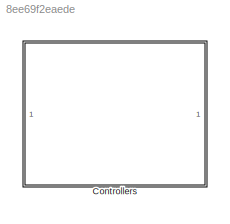
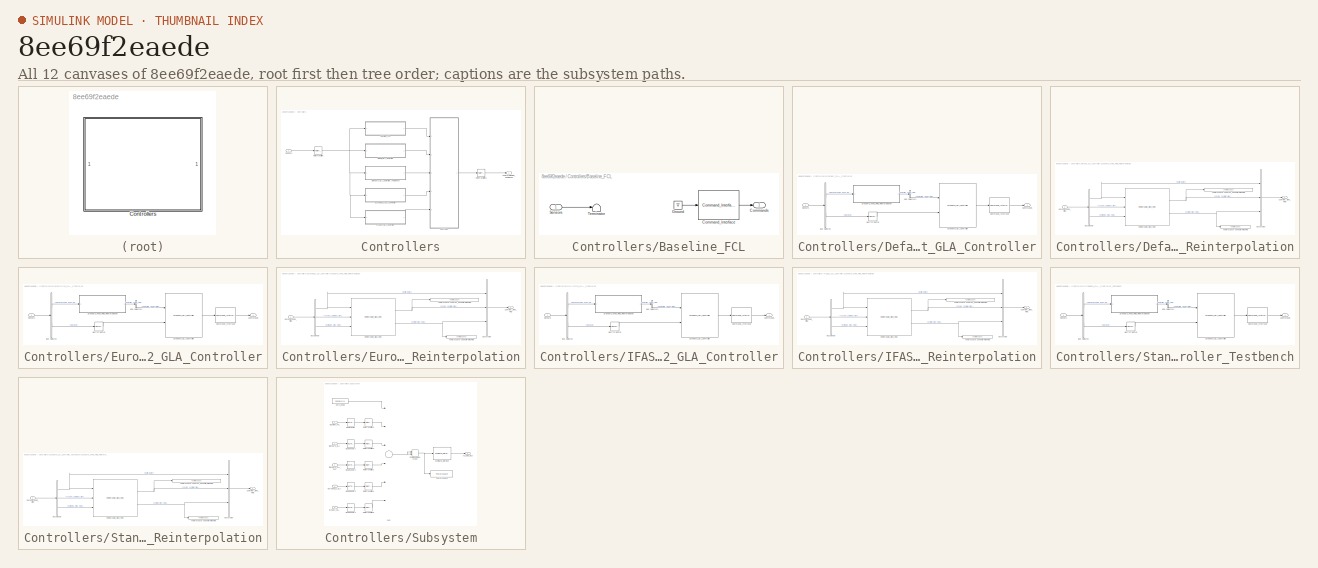
[diagram: thumbnail index - all 12 canvases of the model, root first then tree order]
MODEL slx_8ee69f2eaede
KIND library
CONFIG AbsTol = auto
CONFIG EnableMultiTasking = off
CONFIG FixedStep = auto
CONFIG MaxStep = auto
CONFIG MinStep = auto
CONFIG RelTol = 1e-3
CONFIG SampleTimeConstraint = Unconstrained
CONFIG Solver = VariableStepAuto
CONFIG SolverName = VariableStepAuto
CONFIG StartTime = 0.0
CONFIG StopTime = 10.0
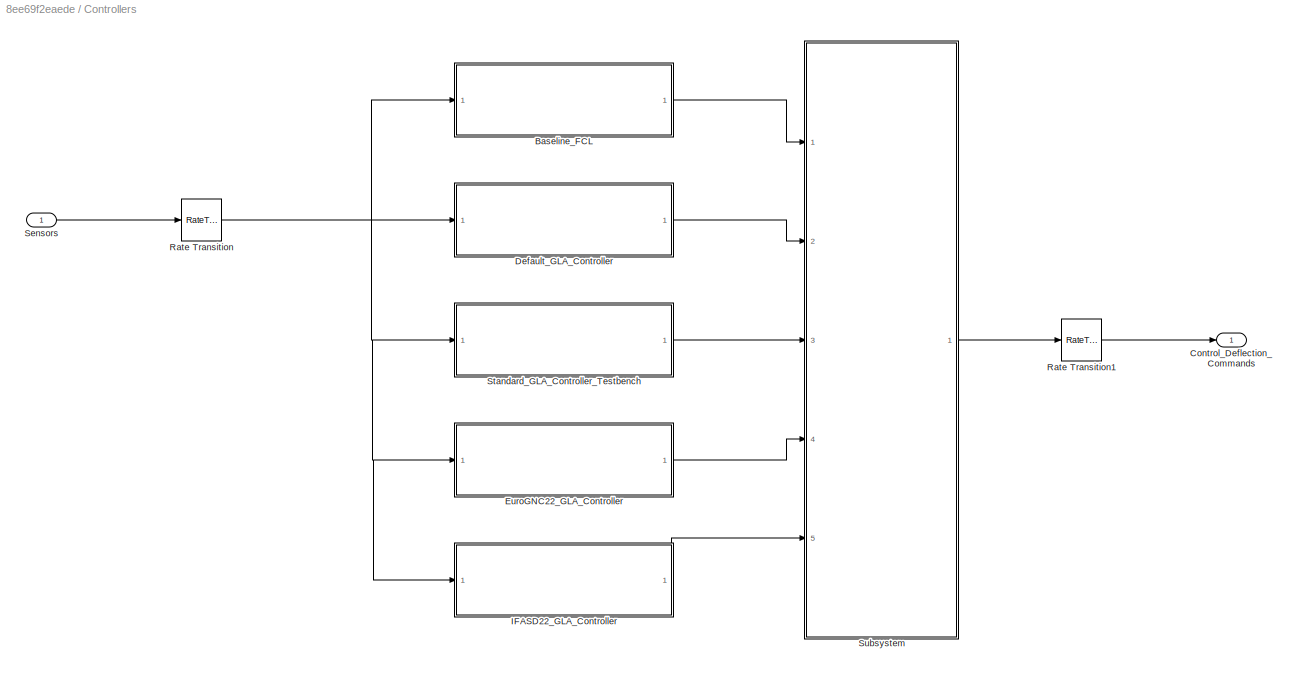
BLOCK [SubSystem] Controllers
  Ports = [1, 1]
  RequestExecContextInheritance = off
  Variant = off
BLOCK [SubSystem] Controllers/Baseline_FCL
  Commented = on
  Ports = [1, 1]
  RequestExecContextInheritance = off
  Variant = off
BLOCK [Reference] Controllers/Baseline_FCL/Command_Interface  REF=lib_Sim_CRM/Command_Interface
  Ports = [1, 1]
  SourceBlock = lib_Sim_CRM/Command_Interface
  SourceType = SubSystem
BLOCK [Outport] Controllers/Baseline_FCL/Commands
  IconDisplay = Port number
BLOCK [Ground] Controllers/Baseline_FCL/Ground
BLOCK [Inport] Controllers/Baseline_FCL/Sensors
  IconDisplay = Port number
BLOCK [Terminator] Controllers/Baseline_FCL/Terminator
BLOCK [Outport] Controllers/Control_Deflection_Commands
  IconDisplay = Port number
BLOCK [SubSystem] Controllers/Default_GLA_Controller
  Ports = [1, 1]
  RequestExecContextInheritance = off
  Variant = off
BLOCK [BusSelector] Controllers/Default_GLA_Controller/Bus Selector
  OutputSignals = Reconstructed_Wind_Field,Classical
  Ports = [1, 2]
BLOCK [BusSelector] Controllers/Default_GLA_Controller/Bus Selector1
  OutputSignals = Controller_Wind_Field [m/s]
  Ports = [1, 1]
BLOCK [BusToVector] Controllers/Default_GLA_Controller/Bus to Vector
BLOCK [Reference] Controllers/Default_GLA_Controller/Command_Interface  REF=lib_Sim_CRM/Command_Interface
  Ports = [1, 1]
  SourceBlock = lib_Sim_CRM/Command_Interface
  SourceType = SubSystem
BLOCK [Outport] Controllers/Default_GLA_Controller/Commands
  IconDisplay = Port number
BLOCK [Inport] Controllers/Default_GLA_Controller/Sensors
  IconDisplay = Port number
BLOCK [Reference] Controllers/Default_GLA_Controller/Standard_GLA_Controller  REF=lib_Sim_CRM/Standard_GLA_Controller
  Ports = [2, 1]
  SourceBlock = lib_Sim_CRM/Standard_GLA_Controller
  SourceType = Simple Gust Load Alleviation Controller Block
BLOCK [SubSystem] Controllers/Default_GLA_Controller/Standard_Wind_Field_Reinterpolation
  Ports = [1, 1]
  RequestExecContextInheritance = off
  Variant = off
BLOCK [BusCreator] Controllers/Default_GLA_Controller/Standard_Wind_Field_Reinterpolation/Bus Creator
  DisplayOption = bar
  InheritFromInputs = on
  Inputs = 3
  Ports = [3, 1]
BLOCK [BusSelector] Controllers/Default_GLA_Controller/Standard_Wind_Field_Reinterpolation/Bus Selector
  OutputSignals = Inertial_Motion,xCoords_Estimated_Wind_Field_Nodes [m],Estimated_Wind_Field [m/s]
  Ports = [1, 3]
BLOCK [Outport] Controllers/Default_GLA_Controller/Standard_Wind_Field_Reinterpolation/Controller_Wind_Field
  IconDisplay = Port number
BLOCK [Inport] Controllers/Default_GLA_Controller/Standard_Wind_Field_Reinterpolation/Reconstructed_Wind
  IconDisplay = Port number
BLOCK [Reference] Controllers/Default_GLA_Controller/Standard_Wind_Field_Reinterpolation/Reinterpolate_Wind_Field  REF=Reinterpolation/Reinterpolate_Wind_Field
  Ports = [3, 2]
  SourceBlock = Reinterpolation/Reinterpolate_Wind_Field
  SourceType = Wind Field Reinterpolation
BLOCK [ToWorkspace] Controllers/Default_GLA_Controller/Standard_Wind_Field_Reinterpolation/To Workspace - ControllerWindField
  Decimation = SimConfig.Logging.DecimationFactor
  MaxDataPoints = inf
  Ports = [1]
  SampleTime = -1
  Save2DSignal = 3-D array (concatenate along third dimension)
  SaveFormat = Structure With Time
  VariableName = Controller_Wind_Field
BLOCK [ToWorkspace] Controllers/Default_GLA_Controller/Standard_Wind_Field_Reinterpolation/To Workspace - xCoords_ControllerWindField
  Decimation = SimConfig.Logging.DecimationFactor
  MaxDataPoints = inf
  Ports = [1]
  SampleTime = -1
  Save2DSignal = 3-D array (concatenate along third dimension)
  SaveFormat = Structure With Time
  VariableName = xCoords_Controller_Wind_Field_Nodes
BLOCK [SubSystem] Controllers/EuroGNC22_GLA_Controller
  Commented = on
  Ports = [1, 1]
  RequestExecContextInheritance = off
  Variant = off
BLOCK [BusSelector] Controllers/EuroGNC22_GLA_Controller/Bus Selector
  OutputSignals = Reconstructed_Wind_Field,Classical
  Ports = [1, 2]
BLOCK [BusSelector] Controllers/EuroGNC22_GLA_Controller/Bus Selector1
  OutputSignals = Controller_Wind_Field [m/s]
  Ports = [1, 1]
BLOCK [BusToVector] Controllers/EuroGNC22_GLA_Controller/Bus to Vector
BLOCK [Reference] Controllers/EuroGNC22_GLA_Controller/Command_Interface  REF=lib_Sim_CRM/Command_Interface
  Ports = [1, 1]
  SourceBlock = lib_Sim_CRM/Command_Interface
  SourceType = SubSystem
BLOCK [Outport] Controllers/EuroGNC22_GLA_Controller/Commands
  IconDisplay = Port number
BLOCK [Inport] Controllers/EuroGNC22_GLA_Controller/Sensors
  IconDisplay = Port number
BLOCK [Reference] Controllers/EuroGNC22_GLA_Controller/Standard_GLA_Controller  REF=lib_Sim_CRM/Standard_GLA_Controller
  Ports = [2, 1]
  SourceBlock = lib_Sim_CRM/Standard_GLA_Controller
  SourceType = Simple Gust Load Alleviation Controller Block
BLOCK [SubSystem] Controllers/EuroGNC22_GLA_Controller/Standard_Wind_Field_Reinterpolation
  Ports = [1, 1]
  RequestExecContextInheritance = off
  Variant = off
BLOCK [BusCreator] Controllers/EuroGNC22_GLA_Controller/Standard_Wind_Field_Reinterpolation/Bus Creator
  DisplayOption = bar
  InheritFromInputs = on
  Inputs = 3
  Ports = [3, 1]
BLOCK [BusSelector] Controllers/EuroGNC22_GLA_Controller/Standard_Wind_Field_Reinterpolation/Bus Selector
  OutputSignals = Inertial_Motion,xCoords_Estimated_Wind_Field_Nodes [m],Estimated_Wind_Field [m/s]
  Ports = [1, 3]
BLOCK [Outport] Controllers/EuroGNC22_GLA_Controller/Standard_Wind_Field_Reinterpolation/Controller_Wind_Field
  IconDisplay = Port number
BLOCK [Inport] Controllers/EuroGNC22_GLA_Controller/Standard_Wind_Field_Reinterpolation/Reconstructed_Wind
  IconDisplay = Port number
BLOCK [Reference] Controllers/EuroGNC22_GLA_Controller/Standard_Wind_Field_Reinterpolation/Reinterpolate_Wind_Field  REF=Reinterpolation/Reinterpolate_Wind_Field
  Ports = [3, 2]
  SourceBlock = Reinterpolation/Reinterpolate_Wind_Field
  SourceType = Wind Field Reinterpolation
BLOCK [ToWorkspace] Controllers/EuroGNC22_GLA_Controller/Standard_Wind_Field_Reinterpolation/To Workspace - ControllerWindField
  Decimation = SimConfig.Logging.DecimationFactor
  MaxDataPoints = inf
  Ports = [1]
  SampleTime = -1
  Save2DSignal = 3-D array (concatenate along third dimension)
  SaveFormat = Structure With Time
  VariableName = Controller_Wind_Field
BLOCK [ToWorkspace] Controllers/EuroGNC22_GLA_Controller/Standard_Wind_Field_Reinterpolation/To Workspace - xCoords_ControllerWindField
  Decimation = SimConfig.Logging.DecimationFactor
  MaxDataPoints = inf
  Ports = [1]
  SampleTime = -1
  Save2DSignal = 3-D array (concatenate along third dimension)
  SaveFormat = Structure With Time
  VariableName = xCoords_Controller_Wind_Field_Nodes
BLOCK [SubSystem] Controllers/IFASD22_GLA_Controller
  Commented = on
  Ports = [1, 1]
  RequestExecContextInheritance = off
  Variant = off
BLOCK [BusSelector] Controllers/IFASD22_GLA_Controller/Bus Selector
  OutputSignals = Reconstructed_Wind_Field,Classical
  Ports = [1, 2]
BLOCK [BusSelector] Controllers/IFASD22_GLA_Controller/Bus Selector1
  OutputSignals = Controller_Wind_Field [m/s]
  Ports = [1, 1]
BLOCK [BusToVector] Controllers/IFASD22_GLA_Controller/Bus to Vector
BLOCK [Reference] Controllers/IFASD22_GLA_Controller/Command_Interface  REF=lib_Sim_CRM/Command_Interface
  Ports = [1, 1]
  SourceBlock = lib_Sim_CRM/Command_Interface
  SourceType = SubSystem
BLOCK [Outport] Controllers/IFASD22_GLA_Controller/Commands
  IconDisplay = Port number
BLOCK [Inport] Controllers/IFASD22_GLA_Controller/Sensors
  IconDisplay = Port number
BLOCK [Reference] Controllers/IFASD22_GLA_Controller/Standard_GLA_Controller  REF=lib_Sim_CRM/Standard_GLA_Controller
  Ports = [2, 1]
  SourceBlock = lib_Sim_CRM/Standard_GLA_Controller
  SourceType = Simple Gust Load Alleviation Controller Block
BLOCK [SubSystem] Controllers/IFASD22_GLA_Controller/Standard_Wind_Field_Reinterpolation
  Ports = [1, 1]
  RequestExecContextInheritance = off
  Variant = off
BLOCK [BusCreator] Controllers/IFASD22_GLA_Controller/Standard_Wind_Field_Reinterpolation/Bus Creator
  DisplayOption = bar
  InheritFromInputs = on
  Inputs = 3
  Ports = [3, 1]
BLOCK [BusSelector] Controllers/IFASD22_GLA_Controller/Standard_Wind_Field_Reinterpolation/Bus Selector
  OutputSignals = Inertial_Motion,xCoords_Estimated_Wind_Field_Nodes [m],Estimated_Wind_Field [m/s]
  Ports = [1, 3]
BLOCK [Outport] Controllers/IFASD22_GLA_Controller/Standard_Wind_Field_Reinterpolation/Controller_Wind_Field
  IconDisplay = Port number
BLOCK [Inport] Controllers/IFASD22_GLA_Controller/Standard_Wind_Field_Reinterpolation/Reconstructed_Wind
  IconDisplay = Port number
BLOCK [Reference] Controllers/IFASD22_GLA_Controller/Standard_Wind_Field_Reinterpolation/Reinterpolate_Wind_Field  REF=Reinterpolation/Reinterpolate_Wind_Field
  Ports = [3, 2]
  SourceBlock = Reinterpolation/Reinterpolate_Wind_Field
  SourceType = Wind Field Reinterpolation
BLOCK [ToWorkspace] Controllers/IFASD22_GLA_Controller/Standard_Wind_Field_Reinterpolation/To Workspace - ControllerWindField
  Decimation = SimConfig.Logging.DecimationFactor
  MaxDataPoints = inf
  Ports = [1]
  SampleTime = -1
  Save2DSignal = 3-D array (concatenate along third dimension)
  SaveFormat = Structure With Time
  VariableName = Controller_Wind_Field
BLOCK [ToWorkspace] Controllers/IFASD22_GLA_Controller/Standard_Wind_Field_Reinterpolation/To Workspace - xCoords_ControllerWindField
  Decimation = SimConfig.Logging.DecimationFactor
  MaxDataPoints = inf
  Ports = [1]
  SampleTime = -1
  Save2DSignal = 3-D array (concatenate along third dimension)
  SaveFormat = Structure With Time
  VariableName = xCoords_Controller_Wind_Field_Nodes
BLOCK [RateTransition] Controllers/Rate Transition
  OutPortSampleTime = CRM.FCS.SampleTime
BLOCK [RateTransition] Controllers/Rate Transition1
  OutPortSampleTime = SimConfig.SampleTime
BLOCK [Inport] Controllers/Sensors
  IconDisplay = Port number
BLOCK [SubSystem] Controllers/Standard_GLA_Controller_Testbench
  Commented = on
  Ports = [1, 1]
  RequestExecContextInheritance = off
  Variant = off
BLOCK [BusSelector] Controllers/Standard_GLA_Controller_Testbench/Bus Selector
  OutputSignals = Reconstructed_Wind_Field,Classical
  Ports = [1, 2]
BLOCK [BusSelector] Controllers/Standard_GLA_Controller_Testbench/Bus Selector1
  OutputSignals = Controller_Wind_Field [m/s]
  Ports = [1, 1]
BLOCK [BusToVector] Controllers/Standard_GLA_Controller_Testbench/Bus to Vector
BLOCK [Reference] Controllers/Standard_GLA_Controller_Testbench/Command_Interface  REF=lib_Sim_CRM/Command_Interface
  Ports = [1, 1]
  SourceBlock = lib_Sim_CRM/Command_Interface
  SourceType = SubSystem
BLOCK [Outport] Controllers/Standard_GLA_Controller_Testbench/Commands
  IconDisplay = Port number
BLOCK [Inport] Controllers/Standard_GLA_Controller_Testbench/Sensors
  IconDisplay = Port number
BLOCK [Reference] Controllers/Standard_GLA_Controller_Testbench/Standard_GLA_Controller  REF=lib_Sim_CRM/Standard_GLA_Controller
  Ports = [2, 1]
  SourceBlock = lib_Sim_CRM/Standard_GLA_Controller
  SourceType = Simple Gust Load Alleviation Controller Block
BLOCK [SubSystem] Controllers/Standard_GLA_Controller_Testbench/Standard_Wind_Field_Reinterpolation
  Ports = [1, 1]
  RequestExecContextInheritance = off
  Variant = off
BLOCK [BusCreator] Controllers/Standard_GLA_Controller_Testbench/Standard_Wind_Field_Reinterpolation/Bus Creator
  DisplayOption = bar
  InheritFromInputs = on
  Inputs = 3
  Ports = [3, 1]
BLOCK [BusSelector] Controllers/Standard_GLA_Controller_Testbench/Standard_Wind_Field_Reinterpolation/Bus Selector
  OutputSignals = Inertial_Motion,xCoords_Estimated_Wind_Field_Nodes [m],Estimated_Wind_Field [m/s]
  Ports = [1, 3]
BLOCK [Outport] Controllers/Standard_GLA_Controller_Testbench/Standard_Wind_Field_Reinterpolation/Controller_Wind_Field
  IconDisplay = Port number
BLOCK [Inport] Controllers/Standard_GLA_Controller_Testbench/Standard_Wind_Field_Reinterpolation/Reconstructed_Wind
  IconDisplay = Port number
BLOCK [Reference] Controllers/Standard_GLA_Controller_Testbench/Standard_Wind_Field_Reinterpolation/Reinterpolate_Wind_Field  REF=Reinterpolation/Reinterpolate_Wind_Field
  Ports = [3, 2]
  SourceBlock = Reinterpolation/Reinterpolate_Wind_Field
  SourceType = Wind Field Reinterpolation
BLOCK [ToWorkspace] Controllers/Standard_GLA_Controller_Testbench/Standard_Wind_Field_Reinterpolation/To Workspace - ControllerWindField
  Decimation = SimConfig.Logging.DecimationFactor
  MaxDataPoints = inf
  Ports = [1]
  SampleTime = -1
  Save2DSignal = 3-D array (concatenate along third dimension)
  SaveFormat = Structure With Time
  VariableName = Controller_Wind_Field
BLOCK [ToWorkspace] Controllers/Standard_GLA_Controller_Testbench/Standard_Wind_Field_Reinterpolation/To Workspace - xCoords_ControllerWindField
  Decimation = SimConfig.Logging.DecimationFactor
  MaxDataPoints = inf
  Ports = [1]
  SampleTime = -1
  Save2DSignal = 3-D array (concatenate along third dimension)
  SaveFormat = Structure With Time
  VariableName = xCoords_Controller_Wind_Field_Nodes
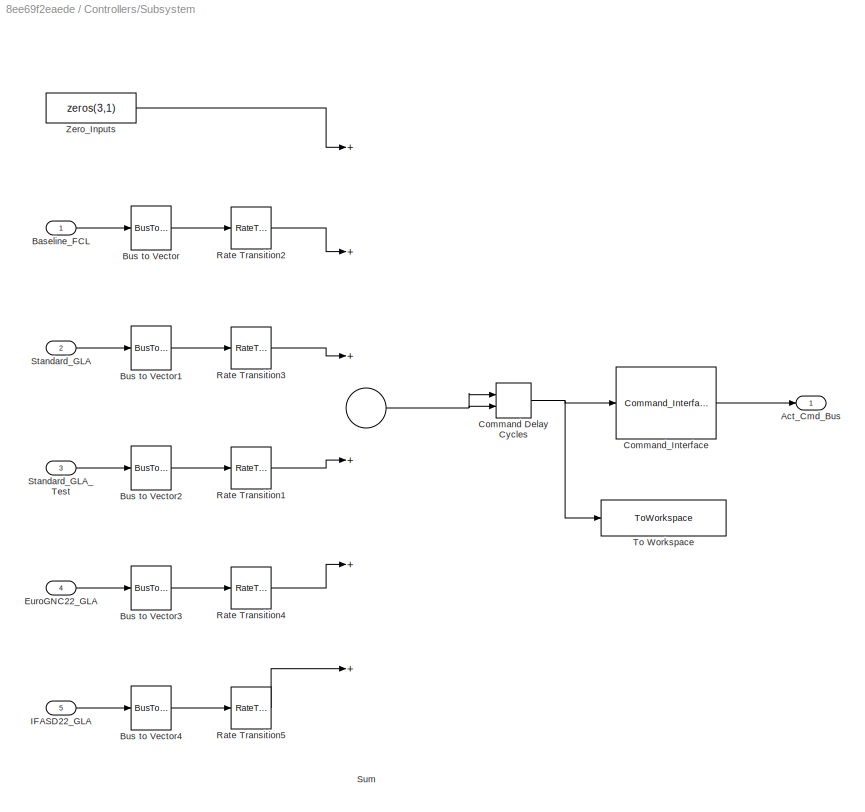
BLOCK [SubSystem] Controllers/Subsystem
  Ports = [5, 1]
  RequestExecContextInheritance = off
  Variant = off
BLOCK [Outport] Controllers/Subsystem/Act_Cmd_Bus
  IconDisplay = Port number
BLOCK [Inport] Controllers/Subsystem/Baseline_FCL
  IconDisplay = Port number
BLOCK [BusToVector] Controllers/Subsystem/Bus to Vector
BLOCK [BusToVector] Controllers/Subsystem/Bus to Vector1
BLOCK [BusToVector] Controllers/Subsystem/Bus to Vector2
BLOCK [BusToVector] Controllers/Subsystem/Bus to Vector3
BLOCK [BusToVector] Controllers/Subsystem/Bus to Vector4
BLOCK [Delay] Controllers/Subsystem/Command Delay Cycles
  DelayLength = CRM.FCS.Command_Delay
  InitialConditionSource = Input port
  InputPortMap = u0,p4
  Ports = [2, 1]
BLOCK [Reference] Controllers/Subsystem/Command_Interface  REF=lib_Sim_CRM/Command_Interface
  Ports = [1, 1]
  SourceBlock = lib_Sim_CRM/Command_Interface
  SourceType = SubSystem
BLOCK [Inport] Controllers/Subsystem/EuroGNC22_GLA
  IconDisplay = Port number
  Port = 4
BLOCK [Inport] Controllers/Subsystem/IFASD22_GLA
  IconDisplay = Port number
  Port = 5
BLOCK [RateTransition] Controllers/Subsystem/Rate Transition1
  OutPortSampleTime = CRM.FCS.SampleTime
BLOCK [RateTransition] Controllers/Subsystem/Rate Transition2
  OutPortSampleTime = CRM.FCS.SampleTime
BLOCK [RateTransition] Controllers/Subsystem/Rate Transition3
  OutPortSampleTime = CRM.FCS.SampleTime
BLOCK [RateTransition] Controllers/Subsystem/Rate Transition4
  OutPortSampleTime = CRM.FCS.SampleTime
BLOCK [RateTransition] Controllers/Subsystem/Rate Transition5
  OutPortSampleTime = CRM.FCS.SampleTime
BLOCK [Inport] Controllers/Subsystem/Standard_GLA
  IconDisplay = Port number
  Port = 2
BLOCK [Inport] Controllers/Subsystem/Standard_GLA_Test
  IconDisplay = Port number
  Port = 3
BLOCK [Sum] Controllers/Subsystem/Sum
  InputSameDT = off
  Inputs = ++++++
  OutDataTypeStr = Inherit: Inherit via internal rule
  Ports = [6, 1]
  SaturateOnIntegerOverflow = off
BLOCK [ToWorkspace] Controllers/Subsystem/To Workspace
  Decimation = SimConfig.Logging.DecimationFactor
  FixptAsFi = on
  MaxDataPoints = inf
  Ports = [1]
  SampleTime = -1
  Save2DSignal = 3-D array (concatenate along third dimension)
  SaveFormat = Structure With Time
  VariableName = Actuator_Commands
BLOCK [Constant] Controllers/Subsystem/Zero_Inputs
  Value = zeros(3,1)
LINE Controllers/Baseline_FCL/Command_Interface:1 -> Controllers/Baseline_FCL/Commands:1
LINE Controllers/Baseline_FCL/Ground:1 -> Controllers/Baseline_FCL/Command_Interface:1
LINE Controllers/Baseline_FCL/Sensors:1 -> Controllers/Baseline_FCL/Terminator:1
LINE Controllers/Baseline_FCL:1 -> Controllers/Subsystem:1
LINE Controllers/Default_GLA_Controller/Bus Selector1:1 -> Controllers/Default_GLA_Controller/Standard_GLA_Controller:1
LINE Controllers/Default_GLA_Controller/Bus Selector:1 -> Controllers/Default_GLA_Controller/Standard_Wind_Field_Reinterpolation:1
LINE Controllers/Default_GLA_Controller/Bus Selector:2 -> Controllers/Default_GLA_Controller/Bus to Vector:1
LINE Controllers/Default_GLA_Controller/Bus to Vector:1 -> Controllers/Default_GLA_Controller/Standard_GLA_Controller:2
LINE Controllers/Default_GLA_Controller/Command_Interface:1 -> Controllers/Default_GLA_Controller/Commands:1
LINE Controllers/Default_GLA_Controller/Sensors:1 -> Controllers/Default_GLA_Controller/Bus Selector:1
LINE Controllers/Default_GLA_Controller/Standard_GLA_Controller:1 -> Controllers/Default_GLA_Controller/Command_Interface:1
LINE Controllers/Default_GLA_Controller/Standard_Wind_Field_Reinterpolation/Bus Creator:1 -> Controllers/Default_GLA_Controller/Standard_Wind_Field_Reinterpolation/Controller_Wind_Field:1
NET Controllers/Default_GLA_Controller/Standard_Wind_Field_Reinterpolation/Bus Selector:1 -> Controllers/Default_GLA_Controller/Standard_Wind_Field_Reinterpolation/Bus Creator:1, Controllers/Default_GLA_Controller/Standard_Wind_Field_Reinterpolation/Reinterpolate_Wind_Field:1
LINE Controllers/Default_GLA_Controller/Standard_Wind_Field_Reinterpolation/Bus Selector:2 -> Controllers/Default_GLA_Controller/Standard_Wind_Field_Reinterpolation/Reinterpolate_Wind_Field:2
LINE Controllers/Default_GLA_Controller/Standard_Wind_Field_Reinterpolation/Bus Selector:3 -> Controllers/Default_GLA_Controller/Standard_Wind_Field_Reinterpolation/Reinterpolate_Wind_Field:3
LINE Controllers/Default_GLA_Controller/Standard_Wind_Field_Reinterpolation/Reconstructed_Wind:1 -> Controllers/Default_GLA_Controller/Standard_Wind_Field_Reinterpolation/Bus Selector:1
NET Controllers/Default_GLA_Controller/Standard_Wind_Field_Reinterpolation/Reinterpolate_Wind_Field:1 -> Controllers/Default_GLA_Controller/Standard_Wind_Field_Reinterpolation/Bus Creator:2, Controllers/Default_GLA_Controller/Standard_Wind_Field_Reinterpolation/To Workspace - xCoords_ControllerWindField:1
NET Controllers/Default_GLA_Controller/Standard_Wind_Field_Reinterpolation/Reinterpolate_Wind_Field:2 -> Controllers/Default_GLA_Controller/Standard_Wind_Field_Reinterpolation/Bus Creator:3, Controllers/Default_GLA_Controller/Standard_Wind_Field_Reinterpolation/To Workspace - ControllerWindField:1
LINE Controllers/Default_GLA_Controller/Standard_Wind_Field_Reinterpolation:1 -> Controllers/Default_GLA_Controller/Bus Selector1:1
LINE Controllers/Default_GLA_Controller:1 -> Controllers/Subsystem:2
LINE Controllers/EuroGNC22_GLA_Controller/Bus Selector1:1 -> Controllers/EuroGNC22_GLA_Controller/Standard_GLA_Controller:1
LINE Controllers/EuroGNC22_GLA_Controller/Bus Selector:1 -> Controllers/EuroGNC22_GLA_Controller/Standard_Wind_Field_Reinterpolation:1
LINE Controllers/EuroGNC22_GLA_Controller/Bus Selector:2 -> Controllers/EuroGNC22_GLA_Controller/Bus to Vector:1
LINE Controllers/EuroGNC22_GLA_Controller/Bus to Vector:1 -> Controllers/EuroGNC22_GLA_Controller/Standard_GLA_Controller:2
LINE Controllers/EuroGNC22_GLA_Controller/Command_Interface:1 -> Controllers/EuroGNC22_GLA_Controller/Commands:1
LINE Controllers/EuroGNC22_GLA_Controller/Sensors:1 -> Controllers/EuroGNC22_GLA_Controller/Bus Selector:1
LINE Controllers/EuroGNC22_GLA_Controller/Standard_GLA_Controller:1 -> Controllers/EuroGNC22_GLA_Controller/Command_Interface:1
LINE Controllers/EuroGNC22_GLA_Controller/Standard_Wind_Field_Reinterpolation/Bus Creator:1 -> Controllers/EuroGNC22_GLA_Controller/Standard_Wind_Field_Reinterpolation/Controller_Wind_Field:1
NET Controllers/EuroGNC22_GLA_Controller/Standard_Wind_Field_Reinterpolation/Bus Selector:1 -> Controllers/EuroGNC22_GLA_Controller/Standard_Wind_Field_Reinterpolation/Bus Creator:1, Controllers/EuroGNC22_GLA_Controller/Standard_Wind_Field_Reinterpolation/Reinterpolate_Wind_Field:1
LINE Controllers/EuroGNC22_GLA_Controller/Standard_Wind_Field_Reinterpolation/Bus Selector:2 -> Controllers/EuroGNC22_GLA_Controller/Standard_Wind_Field_Reinterpolation/Reinterpolate_Wind_Field:2
LINE Controllers/EuroGNC22_GLA_Controller/Standard_Wind_Field_Reinterpolation/Bus Selector:3 -> Controllers/EuroGNC22_GLA_Controller/Standard_Wind_Field_Reinterpolation/Reinterpolate_Wind_Field:3
LINE Controllers/EuroGNC22_GLA_Controller/Standard_Wind_Field_Reinterpolation/Reconstructed_Wind:1 -> Controllers/EuroGNC22_GLA_Controller/Standard_Wind_Field_Reinterpolation/Bus Selector:1
NET Controllers/EuroGNC22_GLA_Controller/Standard_Wind_Field_Reinterpolation/Reinterpolate_Wind_Field:1 -> Controllers/EuroGNC22_GLA_Controller/Standard_Wind_Field_Reinterpolation/Bus Creator:2, Controllers/EuroGNC22_GLA_Controller/Standard_Wind_Field_Reinterpolation/To Workspace - xCoords_ControllerWindField:1
NET Controllers/EuroGNC22_GLA_Controller/Standard_Wind_Field_Reinterpolation/Reinterpolate_Wind_Field:2 -> Controllers/EuroGNC22_GLA_Controller/Standard_Wind_Field_Reinterpolation/Bus Creator:3, Controllers/EuroGNC22_GLA_Controller/Standard_Wind_Field_Reinterpolation/To Workspace - ControllerWindField:1
LINE Controllers/EuroGNC22_GLA_Controller/Standard_Wind_Field_Reinterpolation:1 -> Controllers/EuroGNC22_GLA_Controller/Bus Selector1:1
LINE Controllers/EuroGNC22_GLA_Controller:1 -> Controllers/Subsystem:4
LINE Controllers/IFASD22_GLA_Controller/Bus Selector1:1 -> Controllers/IFASD22_GLA_Controller/Standard_GLA_Controller:1
LINE Controllers/IFASD22_GLA_Controller/Bus Selector:1 -> Controllers/IFASD22_GLA_Controller/Standard_Wind_Field_Reinterpolation:1
LINE Controllers/IFASD22_GLA_Controller/Bus Selector:2 -> Controllers/IFASD22_GLA_Controller/Bus to Vector:1
LINE Controllers/IFASD22_GLA_Controller/Bus to Vector:1 -> Controllers/IFASD22_GLA_Controller/Standard_GLA_Controller:2
LINE Controllers/IFASD22_GLA_Controller/Command_Interface:1 -> Controllers/IFASD22_GLA_Controller/Commands:1
LINE Controllers/IFASD22_GLA_Controller/Sensors:1 -> Controllers/IFASD22_GLA_Controller/Bus Selector:1
LINE Controllers/IFASD22_GLA_Controller/Standard_GLA_Controller:1 -> Controllers/IFASD22_GLA_Controller/Command_Interface:1
LINE Controllers/IFASD22_GLA_Controller/Standard_Wind_Field_Reinterpolation/Bus Creator:1 -> Controllers/IFASD22_GLA_Controller/Standard_Wind_Field_Reinterpolation/Controller_Wind_Field:1
NET Controllers/IFASD22_GLA_Controller/Standard_Wind_Field_Reinterpolation/Bus Selector:1 -> Controllers/IFASD22_GLA_Controller/Standard_Wind_Field_Reinterpolation/Bus Creator:1, Controllers/IFASD22_GLA_Controller/Standard_Wind_Field_Reinterpolation/Reinterpolate_Wind_Field:1
LINE Controllers/IFASD22_GLA_Controller/Standard_Wind_Field_Reinterpolation/Bus Selector:2 -> Controllers/IFASD22_GLA_Controller/Standard_Wind_Field_Reinterpolation/Reinterpolate_Wind_Field:2
LINE Controllers/IFASD22_GLA_Controller/Standard_Wind_Field_Reinterpolation/Bus Selector:3 -> Controllers/IFASD22_GLA_Controller/Standard_Wind_Field_Reinterpolation/Reinterpolate_Wind_Field:3
LINE Controllers/IFASD22_GLA_Controller/Standard_Wind_Field_Reinterpolation/Reconstructed_Wind:1 -> Controllers/IFASD22_GLA_Controller/Standard_Wind_Field_Reinterpolation/Bus Selector:1
NET Controllers/IFASD22_GLA_Controller/Standard_Wind_Field_Reinterpolation/Reinterpolate_Wind_Field:1 -> Controllers/IFASD22_GLA_Controller/Standard_Wind_Field_Reinterpolation/Bus Creator:2, Controllers/IFASD22_GLA_Controller/Standard_Wind_Field_Reinterpolation/To Workspace - xCoords_ControllerWindField:1
NET Controllers/IFASD22_GLA_Controller/Standard_Wind_Field_Reinterpolation/Reinterpolate_Wind_Field:2 -> Controllers/IFASD22_GLA_Controller/Standard_Wind_Field_Reinterpolation/Bus Creator:3, Controllers/IFASD22_GLA_Controller/Standard_Wind_Field_Reinterpolation/To Workspace - ControllerWindField:1
LINE Controllers/IFASD22_GLA_Controller/Standard_Wind_Field_Reinterpolation:1 -> Controllers/IFASD22_GLA_Controller/Bus Selector1:1
LINE Controllers/IFASD22_GLA_Controller:1 -> Controllers/Subsystem:5
LINE Controllers/Rate Transition1:1 -> Controllers/Control_Deflection_Commands:1
NET Controllers/Rate Transition:1 -> Controllers/Baseline_FCL:1, Controllers/Default_GLA_Controller:1, Controllers/EuroGNC22_GLA_Controller:1, Controllers/IFASD22_GLA_Controller:1, Controllers/Standard_GLA_Controller_Testbench:1
LINE Controllers/Sensors:1 -> Controllers/Rate Transition:1
LINE Controllers/Standard_GLA_Controller_Testbench/Bus Selector1:1 -> Controllers/Standard_GLA_Controller_Testbench/Standard_GLA_Controller:1
LINE Controllers/Standard_GLA_Controller_Testbench/Bus Selector:1 -> Controllers/Standard_GLA_Controller_Testbench/Standard_Wind_Field_Reinterpolation:1
LINE Controllers/Standard_GLA_Controller_Testbench/Bus Selector:2 -> Controllers/Standard_GLA_Controller_Testbench/Bus to Vector:1
LINE Controllers/Standard_GLA_Controller_Testbench/Bus to Vector:1 -> Controllers/Standard_GLA_Controller_Testbench/Standard_GLA_Controller:2
LINE Controllers/Standard_GLA_Controller_Testbench/Command_Interface:1 -> Controllers/Standard_GLA_Controller_Testbench/Commands:1
LINE Controllers/Standard_GLA_Controller_Testbench/Sensors:1 -> Controllers/Standard_GLA_Controller_Testbench/Bus Selector:1
LINE Controllers/Standard_GLA_Controller_Testbench/Standard_GLA_Controller:1 -> Controllers/Standard_GLA_Controller_Testbench/Command_Interface:1
LINE Controllers/Standard_GLA_Controller_Testbench/Standard_Wind_Field_Reinterpolation/Bus Creator:1 -> Controllers/Standard_GLA_Controller_Testbench/Standard_Wind_Field_Reinterpolation/Controller_Wind_Field:1
NET Controllers/Standard_GLA_Controller_Testbench/Standard_Wind_Field_Reinterpolation/Bus Selector:1 -> Controllers/Standard_GLA_Controller_Testbench/Standard_Wind_Field_Reinterpolation/Bus Creator:1, Controllers/Standard_GLA_Controller_Testbench/Standard_Wind_Field_Reinterpolation/Reinterpolate_Wind_Field:1
LINE Controllers/Standard_GLA_Controller_Testbench/Standard_Wind_Field_Reinterpolation/Bus Selector:2 -> Controllers/Standard_GLA_Controller_Testbench/Standard_Wind_Field_Reinterpolation/Reinterpolate_Wind_Field:2
LINE Controllers/Standard_GLA_Controller_Testbench/Standard_Wind_Field_Reinterpolation/Bus Selector:3 -> Controllers/Standard_GLA_Controller_Testbench/Standard_Wind_Field_Reinterpolation/Reinterpolate_Wind_Field:3
LINE Controllers/Standard_GLA_Controller_Testbench/Standard_Wind_Field_Reinterpolation/Reconstructed_Wind:1 -> Controllers/Standard_GLA_Controller_Testbench/Standard_Wind_Field_Reinterpolation/Bus Selector:1
NET Controllers/Standard_GLA_Controller_Testbench/Standard_Wind_Field_Reinterpolation/Reinterpolate_Wind_Field:1 -> Controllers/Standard_GLA_Controller_Testbench/Standard_Wind_Field_Reinterpolation/Bus Creator:2, Controllers/Standard_GLA_Controller_Testbench/Standard_Wind_Field_Reinterpolation/To Workspace - xCoords_ControllerWindField:1
NET Controllers/Standard_GLA_Controller_Testbench/Standard_Wind_Field_Reinterpolation/Reinterpolate_Wind_Field:2 -> Controllers/Standard_GLA_Controller_Testbench/Standard_Wind_Field_Reinterpolation/Bus Creator:3, Controllers/Standard_GLA_Controller_Testbench/Standard_Wind_Field_Reinterpolation/To Workspace - ControllerWindField:1
LINE Controllers/Standard_GLA_Controller_Testbench/Standard_Wind_Field_Reinterpolation:1 -> Controllers/Standard_GLA_Controller_Testbench/Bus Selector1:1
LINE Controllers/Standard_GLA_Controller_Testbench:1 -> Controllers/Subsystem:3
LINE Controllers/Subsystem/Baseline_FCL:1 -> Controllers/Subsystem/Bus to Vector:1
LINE Controllers/Subsystem/Bus to Vector1:1 -> Controllers/Subsystem/Rate Transition3:1
LINE Controllers/Subsystem/Bus to Vector2:1 -> Controllers/Subsystem/Rate Transition1:1
LINE Controllers/Subsystem/Bus to Vector3:1 -> Controllers/Subsystem/Rate Transition4:1
LINE Controllers/Subsystem/Bus to Vector4:1 -> Controllers/Subsystem/Rate Transition5:1
LINE Controllers/Subsystem/Bus to Vector:1 -> Controllers/Subsystem/Rate Transition2:1
NET Controllers/Subsystem/Command Delay Cycles:1 -> Controllers/Subsystem/Command_Interface:1, Controllers/Subsystem/To Workspace:1
LINE Controllers/Subsystem/Command_Interface:1 -> Controllers/Subsystem/Act_Cmd_Bus:1
LINE Controllers/Subsystem/EuroGNC22_GLA:1 -> Controllers/Subsystem/Bus to Vector3:1
LINE Controllers/Subsystem/IFASD22_GLA:1 -> Controllers/Subsystem/Bus to Vector4:1
LINE Controllers/Subsystem/Rate Transition1:1 -> Controllers/Subsystem/Sum:4
LINE Controllers/Subsystem/Rate Transition2:1 -> Controllers/Subsystem/Sum:2
LINE Controllers/Subsystem/Rate Transition3:1 -> Controllers/Subsystem/Sum:3
LINE Controllers/Subsystem/Rate Transition4:1 -> Controllers/Subsystem/Sum:5
LINE Controllers/Subsystem/Rate Transition5:1 -> Controllers/Subsystem/Sum:6
LINE Controllers/Subsystem/Standard_GLA:1 -> Controllers/Subsystem/Bus to Vector1:1
LINE Controllers/Subsystem/Standard_GLA_Test:1 -> Controllers/Subsystem/Bus to Vector2:1
NET Controllers/Subsystem/Sum:1 -> Controllers/Subsystem/Command Delay Cycles:1, Controllers/Subsystem/Command Delay Cycles:2
LINE Controllers/Subsystem/Zero_Inputs:1 -> Controllers/Subsystem/Sum:1
LINE Controllers/Subsystem:1 -> Controllers/Rate Transition1:1
note: NET lines group one-source signal fan-out (src -> all destinations, sorted); 1:1 wires keep LINE
